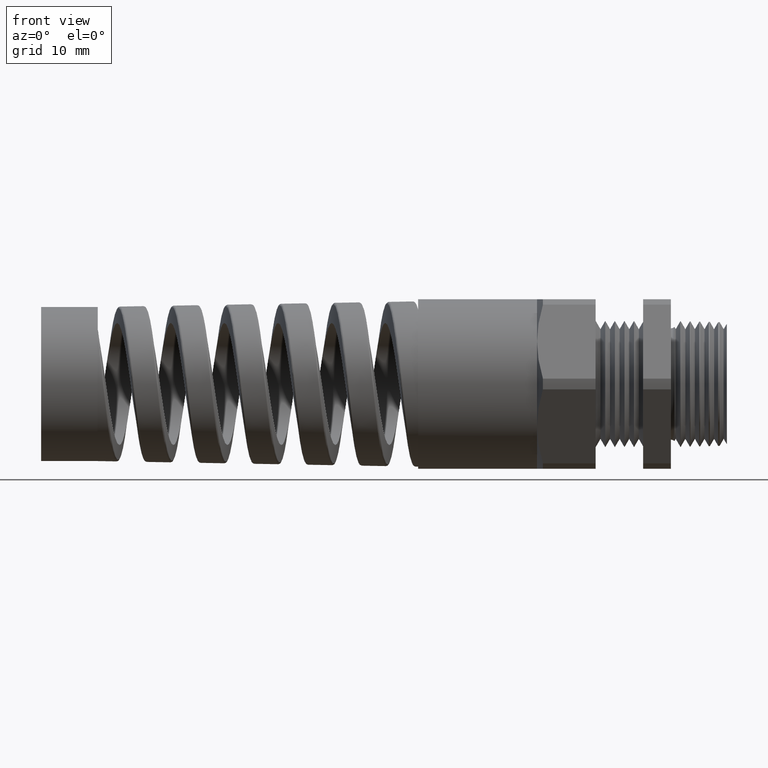
[diagram: clean part render]
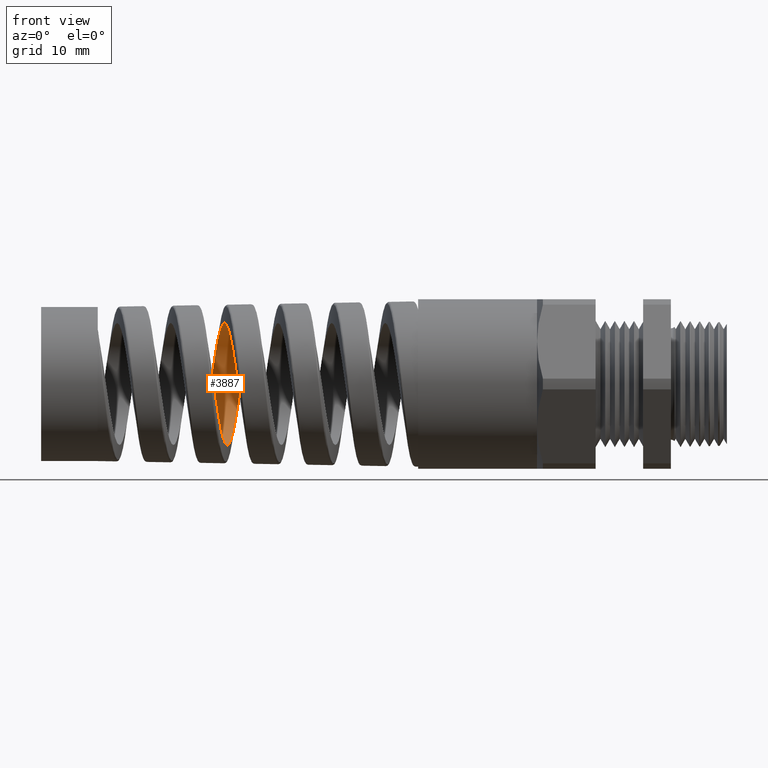
[diagram: same view with one face highlighted and labeled with its STEP entity id]
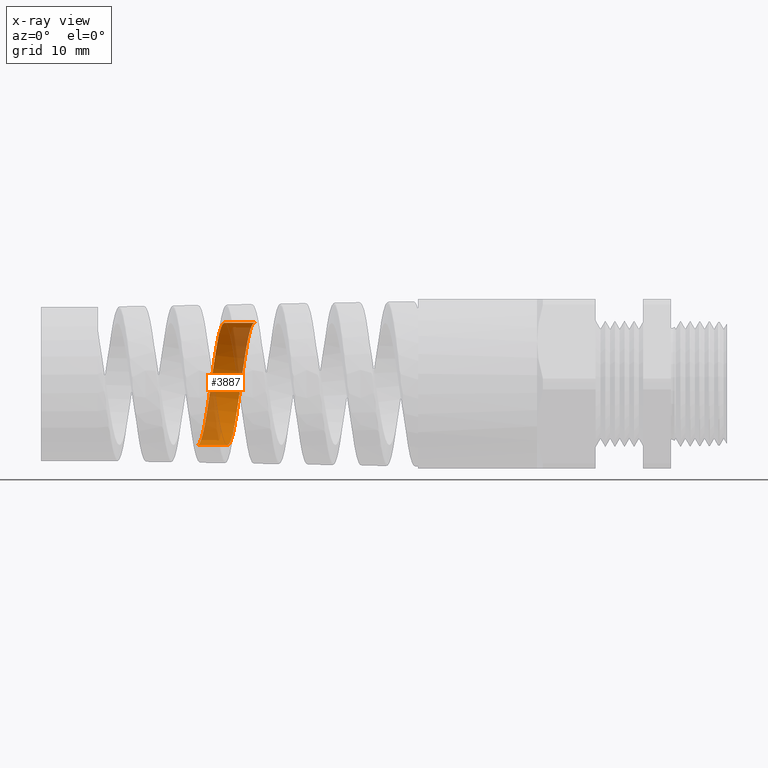
[diagram: x-ray of the same camera — body ghosted, the highlighted face saturated]
A machine part, front view. The second image highlights one B-rep face of the part: STEP entity #3887.
The next image is the same camera in x-ray: the body ghosted, the highlighted face saturated — about 36% of this face is hidden behind the body in this view.
In plain terms, the highlighted cylindrical surface (partial cylindrical patch) has radius 9.7037 mm, axis along (1, 0, 0).
Its self-contained STEP definition (entity closure, byte-faithful):
#6 = CYLINDRICAL_SURFACE ( 'NONE', #93, 0.3820352270837501000 ) ;
#90 = DIRECTION ( 'NONE',  ( 0.0000000000000000000, 0.0000000000000000000, -1.000000000000000000 ) ) ;
#91 = DIRECTION ( 'NONE',  ( 1.000000000000000000, 0.0000000000000000000, 0.0000000000000000000 ) ) ;
#92 = CARTESIAN_POINT ( 'NONE',  ( 0.4924815508901369000, 0.0000000000000000000, 0.0000000000000000000 ) ) ;
#93 = AXIS2_PLACEMENT_3D ( 'NONE', #92, #91, #90 ) ;
#2061 = CARTESIAN_POINT ( 'NONE',  ( -2.723763802577470200, 0.3106543495599472500, -0.2227168441898293700 ) ) ;
#2063 = CARTESIAN_POINT ( 'NONE',  ( -2.725542607568184600, 0.3031156534018126800, -0.2328693632370738000 ) ) ;
#2064 = CARTESIAN_POINT ( 'NONE',  ( -2.736072371524823000, 0.2520361787993751800, -0.2873759930606725700 ) ) ;
#2065 = CARTESIAN_POINT ( 'NONE',  ( -2.729064700890894400, 0.2872409447671262500, -0.2521901649964501400 ) ) ;
#2066 = CARTESIAN_POINT ( 'NONE',  ( -2.739589121226157600, 0.2327095947028808000, -0.3032382583788186800 ) ) ;
#2067 = CARTESIAN_POINT ( 'NONE',  ( -2.732570289482636900, 0.2704955185429368500, -0.2706416039934612700 ) ) ;
#2120 = VERTEX_POINT ( 'NONE', #4073 ) ;
#2177 = EDGE_CURVE ( 'NONE', #2395, #2362, #4358, .T. ) ;
#2180 = ORIENTED_EDGE ( 'NONE', *, *, #2378, .T. ) ;
#2190 = EDGE_CURVE ( 'NONE', #2120, #2365, #4399, .T. ) ;
#2204 = ORIENTED_EDGE ( 'NONE', *, *, #2177, .F. ) ;
#2362 = VERTEX_POINT ( 'NONE', #8502 ) ;
#2365 = VERTEX_POINT ( 'NONE', #8501 ) ;
#2372 = EDGE_CURVE ( 'NONE', #2365, #2395, #8593, .T. ) ;
#2378 = EDGE_CURVE ( 'NONE', #2120, #2362, #8610, .T. ) ;
#2384 = CARTESIAN_POINT ( 'NONE',  ( -2.750149870379852600, 0.1691964298744001400, -0.3434303928435552000 ) ) ;
#2385 = CARTESIAN_POINT ( 'NONE',  ( -2.746665895654331700, 0.1911841165376337300, -0.3317105509791494800 ) ) ;
#2386 = CARTESIAN_POINT ( 'NONE',  ( -2.741364161898928800, 0.2225565933471029800, -0.3107693080392966400 ) ) ;
#2387 = CARTESIAN_POINT ( 'NONE',  ( -2.757166506011995200, 0.1228904629759651900, -0.3619490467453789800 ) ) ;
#2388 = CARTESIAN_POINT ( 'NONE',  ( -2.755407839700355400, 0.1346623215534017400, -0.3577320391805547900 ) ) ;
#2390 = CARTESIAN_POINT ( 'NONE',  ( -2.760710304952708400, 0.09881234654315719500, -0.3692496425197601100 ) ) ;
#2395 = VERTEX_POINT ( 'NONE', #8675 ) ;
#2402 = CARTESIAN_POINT ( 'NONE',  ( -2.762486992639439500, 0.08656056227930336600, -0.3723094667399961000 ) ) ;
#2407 = CARTESIAN_POINT ( 'NONE',  ( -2.767765342367383600, 0.04978781850382946200, -0.3796007228590976300 ) ) ;
#2408 = CARTESIAN_POINT ( 'NONE',  ( -2.774765648001497300, 1.254942672089520900E-015, -0.3820352270837501000 ) ) ;
#2413 = CARTESIAN_POINT ( 'NONE',  ( -2.771249210882846400, 0.02501723694449162600, -0.3820352270837501000 ) ) ;
#3843 = ORIENTED_EDGE ( 'NONE', *, *, #2190, .F. ) ;
#3846 = EDGE_LOOP ( 'NONE', ( #3865, #3843, #2180, #2204 ) ) ;
#3865 = ORIENTED_EDGE ( 'NONE', *, *, #2372, .F. ) ;
#3887 = ADVANCED_FACE ( 'NONE', ( #11780 ), #6, .F. ) ;
#4073 = CARTESIAN_POINT ( 'NONE',  ( -2.960963163897965000, 3.042168851694564100E-014, -0.3820352270837502600 ) ) ;
#4325 = CARTESIAN_POINT ( 'NONE',  ( -2.718458838466124100, 0.3316065778590288100, -0.1913635379778187200 ) ) ;
#4326 = CARTESIAN_POINT ( 'NONE',  ( -2.714975020025153500, 0.3433380245141717200, -0.1693841615059762100 ) ) ;
#4327 = CARTESIAN_POINT ( 'NONE',  ( -2.709720838270481400, 0.3576597730019127100, -0.1348542588779230200 ) ) ;
#4328 = CARTESIAN_POINT ( 'NONE',  ( -2.707964767002885200, 0.3618839734423663900, -0.1230823197177700600 ) ) ;
#4329 = CARTESIAN_POINT ( 'NONE',  ( -2.704425028163496100, 0.3691991699996979800, -0.09900121480606652300 ) ) ;
#4330 = CARTESIAN_POINT ( 'NONE',  ( -2.702650968428168100, 0.3722638318887203100, -0.08675633717375826100 ) ) ;
#4331 = CARTESIAN_POINT ( 'NONE',  ( -2.697373987706143300, 0.3795734989348878400, -0.04999304948340489700 ) ) ;
#4332 = CARTESIAN_POINT ( 'NONE',  ( -2.693882431463825900, 0.3820218420338380400, -0.02522466676325450100 ) ) ;
#4333 = CARTESIAN_POINT ( 'NONE',  ( -2.688601821931583900, 0.3820418382760084600, 0.01230702065686051200 ) ) ;
#4334 = CARTESIAN_POINT ( 'NONE',  ( -2.686824079995858500, 0.3814264141840355000, 0.02495108050951256500 ) ) ;
#4335 = CARTESIAN_POINT ( 'NONE',  ( -2.683293033520759000, 0.3789639478819193900, 0.04994989551173723700 ) ) ;
#4336 = CARTESIAN_POINT ( 'NONE',  ( -2.681539718546369900, 0.3771260165410801900, 0.06230542158879511000 ) ) ;
#4337 = CARTESIAN_POINT ( 'NONE',  ( -2.676288792329044600, 0.3698386628304019000, 0.09894751600229799400 ) ) ;
#4338 = CARTESIAN_POINT ( 'NONE',  ( -2.672800231002948400, 0.3626323930077728900, 0.1228136173127040800 ) ) ;
#4339 = CARTESIAN_POINT ( 'NONE',  ( -2.667481120497615400, 0.3481837030321950400, 0.1577265172901543000 ) ) ;
#4340 = CARTESIAN_POINT ( 'NONE',  ( -2.665708617958202400, 0.3427929190114865600, 0.1691149793785632600 ) ) ;
#4341 = CARTESIAN_POINT ( 'NONE',  ( -2.662190739964432200, 0.3310169884195463000, 0.1911403017479082200 ) ) ;
#4342 = CARTESIAN_POINT ( 'NONE',  ( -2.660438923925351900, 0.3246144923512850300, 0.2018197491902531100 ) ) ;
#4343 = CARTESIAN_POINT ( 'NONE',  ( -2.656936619029480500, 0.3107920565877411700, 0.2225175888995325800 ) ) ;
#4344 = CARTESIAN_POINT ( 'NONE',  ( -2.655185839172534900, 0.3033721463206242000, 0.2325359512177973800 ) ) ;
#4345 = CARTESIAN_POINT ( 'NONE',  ( -2.651666288965714500, 0.2874982575774494600, 0.2518975578720021300 ) ) ;
#4346 = CARTESIAN_POINT ( 'NONE',  ( -2.649888115139096700, 0.2789937750715034100, 0.2612869977642324200 ) ) ;
#4347 = CARTESIAN_POINT ( 'NONE',  ( -2.644596403087951900, 0.2523687623170876600, 0.2879078854858307400 ) ) ;
#4348 = CARTESIAN_POINT ( 'NONE',  ( -2.641111832699970300, 0.2331110447989971100, 0.3036972652025065100 ) ) ;
#4349 = CARTESIAN_POINT ( 'NONE',  ( -2.634091172249419800, 0.1916534509041965000, 0.3314238115393555700 ) ) ;
#4350 = CARTESIAN_POINT ( 'NONE',  ( -2.630521328988840100, 0.1692141095157440000, 0.3434249816068187200 ) ) ;
#4351 = CARTESIAN_POINT ( 'NONE',  ( -2.623494607581814200, 0.1230833326547991900, 0.3625253454221348800 ) ) ;
#4352 = CARTESIAN_POINT ( 'NONE',  ( -2.620013630343347900, 0.09926479899762562200, 0.3697635585598835800 ) ) ;
#4353 = CARTESIAN_POINT ( 'NONE',  ( -2.614731886349653100, 0.06240993519114543300, 0.3771111685284104200 ) ) ;
#4354 = CARTESIAN_POINT ( 'NONE',  ( -2.612952627585371200, 0.04987392932407409800, 0.3789733183006987500 ) ) ;
#4355 = CARTESIAN_POINT ( 'NONE',  ( -2.609425617338531700, 0.02491289024187983200, 0.3814282799031314400 ) ) ;
#4356 = CARTESIAN_POINT ( 'NONE',  ( -2.607672038468566500, 0.01244814403770184500, 0.3820352270837501500 ) ) ;
#4357 = CARTESIAN_POINT ( 'NONE',  ( -2.605919869768849500, -3.818184422394817700E-015, 0.3820352270837501000 ) ) ;
#4358 = B_SPLINE_CURVE_WITH_KNOTS ( 'NONE', 3,
 ( #4357, #4356, #4355, #4354, #4353, #4352, #4351, #4350, #4349, #4348, #4347, #4346, #4345, #4344, #4343, #4342, #4341, #4340, #4339, #4338, #4337, #4336, #4335, #4334, #4333, #4332, #4331, #4330, #4329, #4328, #4327, #4326, #4325, #2061, #2063, #2065, #2067, #2064, #2066, #2386, #2385, #2384, #2388, #2387, #2390, #2402, #2407, #2413, #2408 ),
 .UNSPECIFIED., .F., .F.,
 ( 4, 2, 2, 2, 2, 2, 2, 2, 2, 2, 2, 2, 2, 2, 2, 2, 2, 2, 1, 2, 2, 2, 2, 2, 4 ),
 ( 0.1880161247607579100, 0.1889736613803807400, 0.1899311980000035800, 0.1918462712392492400, 0.1937613444784949100, 0.1956764177177405800, 0.1966339543373633900, 0.1975914909569862200, 0.1985490275766090600, 0.1995065641962318900, 0.2014216374354775600, 0.2023791740551003900, 0.2033367106747232300, 0.2052517839139688700, 0.2062093205335917000, 0.2071668571532145300, 0.2090819303924601700, 0.2100394670120830100, 0.2109970036317058400, 0.2119545402513286500, 0.2129120768709514800, 0.2148271501101971200, 0.2157846867298199600, 0.2167422233494427900, 0.2186572965886884300 ),
 .UNSPECIFIED. ) ;
#4363 = CARTESIAN_POINT ( 'NONE',  ( -2.828135068414021600, 0.2331547817128913900, 0.3036739274117272700 ) ) ;
#4364 = CARTESIAN_POINT ( 'NONE',  ( -2.831599613579801800, 0.2523941448100400200, 0.2878735061366190000 ) ) ;
#4365 = CARTESIAN_POINT ( 'NONE',  ( -2.838574300067439300, 0.2877058654696449400, 0.2525852229330610700 ) ) ;
#4366 = CARTESIAN_POINT ( 'NONE',  ( -2.842111791321863600, 0.3038516679083058700, 0.2329103948412927800 ) ) ;
#4367 = CARTESIAN_POINT ( 'NONE',  ( -2.849084851671309000, 0.3315568223640645900, 0.1914240362640758900 ) ) ;
#4368 = CARTESIAN_POINT ( 'NONE',  ( -2.852552639956162500, 0.3433082421779329300, 0.1694696747164171900 ) ) ;
#4369 = CARTESIAN_POINT ( 'NONE',  ( -2.857821061664659100, 0.3577206761060081600, 0.1347005340928812400 ) ) ;
#4370 = CARTESIAN_POINT ( 'NONE',  ( -2.859592684039801400, 0.3619881245544979100, 0.1227694067098395200 ) ) ;
#4371 = CARTESIAN_POINT ( 'NONE',  ( -2.863094971937836700, 0.3692508690683305500, 0.09880043134850778600 ) ) ;
#4372 = CARTESIAN_POINT ( 'NONE',  ( -2.864835434947901500, 0.3722746033987827100, 0.08670312259825695100 ) ) ;
#4373 = CARTESIAN_POINT ( 'NONE',  ( -2.870052085301251200, 0.3795553176474634200, 0.05008257044894080100 ) ) ;
#4374 = CARTESIAN_POINT ( 'NONE',  ( -2.873534394626035700, 0.3820387686402375000, 0.02514810124119973300 ) ) ;
#4375 = CARTESIAN_POINT ( 'NONE',  ( -2.880579302935335000, 0.3820316779667066200, -0.02525558888898212300 ) ) ;
#4376 = CARTESIAN_POINT ( 'NONE',  ( -2.884051377930253200, 0.3795581834282503700, -0.05006723179888206100 ) ) ;
#4377 = CARTESIAN_POINT ( 'NONE',  ( -2.889280411838938800, 0.3722739791963742300, -0.08670672430576528700 ) ) ;
#4378 = CARTESIAN_POINT ( 'NONE',  ( -2.891026600972937700, 0.3692459844078421800, -0.09882291745692213500 ) ) ;
#4379 = CARTESIAN_POINT ( 'NONE',  ( -2.894538734692935700, 0.3619603543697922900, -0.1228546616148871500 ) ) ;
#4380 = CARTESIAN_POINT ( 'NONE',  ( -2.896306392435523700, 0.3576906432948293000, -0.1347773561951168000 ) ) ;
#4381 = CARTESIAN_POINT ( 'NONE',  ( -2.901552115846427700, 0.3433094989785675000, -0.1694578764376094300 ) ) ;
#4382 = CARTESIAN_POINT ( 'NONE',  ( -2.905011371578557700, 0.3315693565814895600, -0.1914077294979854000 ) ) ;
#4383 = CARTESIAN_POINT ( 'NONE',  ( -2.910249259679957000, 0.3107542631991666600, -0.2225730514619902500 ) ) ;
#4384 = CARTESIAN_POINT ( 'NONE',  ( -2.912010848472525600, 0.3032435536671319000, -0.2327074248976739900 ) ) ;
#4385 = CARTESIAN_POINT ( 'NONE',  ( -2.915532993410760600, 0.2872657356311894600, -0.2521662062518465500 ) ) ;
#4386 = CARTESIAN_POINT ( 'NONE',  ( -2.917281799172781300, 0.2788568955789528200, -0.2614288817616590200 ) ) ;
#4387 = CARTESIAN_POINT ( 'NONE',  ( -2.922515126899397000, 0.2524103397568205300, -0.2878561965797831200 ) ) ;
#4388 = CARTESIAN_POINT ( 'NONE',  ( -2.925983469934883900, 0.2331635691241198700, -0.3036730471384224700 ) ) ;
#4389 = CARTESIAN_POINT ( 'NONE',  ( -2.931251084513503800, 0.2018192148477643800, -0.3246195202836538700 ) ) ;
#4390 = CARTESIAN_POINT ( 'NONE',  ( -2.933016305396571400, 0.1909639415498688200, -0.3311194881336069200 ) ) ;
#4391 = CARTESIAN_POINT ( 'NONE',  ( -2.936510555163749400, 0.1688978074026038500, -0.3429006751943143300 ) ) ;
#4392 = CARTESIAN_POINT ( 'NONE',  ( -2.939988031558997200, 0.1463621162742201900, -0.3535433567703808500 ) ) ;
#4393 = CARTESIAN_POINT ( 'NONE',  ( -2.943467179855911600, 0.1229057837837630300, -0.3619410257622390200 ) ) ;
#4394 = CARTESIAN_POINT ( 'NONE',  ( -2.946963886680491000, 0.09898526017996134300, -0.3692005634941913400 ) ) ;
#4395 = CARTESIAN_POINT ( 'NONE',  ( -2.948729949916174300, 0.08673007481645159100, -0.3722727586751415900 ) ) ;
#4396 = CARTESIAN_POINT ( 'NONE',  ( -2.954011580341466800, 0.04971935639526570100, -0.3796204582446968700 ) ) ;
#4397 = CARTESIAN_POINT ( 'NONE',  ( -2.957481342319859200, 0.02491754421665970700, -0.3820352270837485400 ) ) ;
#4398 = CARTESIAN_POINT ( 'NONE',  ( -2.960963163897965000, 3.042168851694564100E-014, -0.3820352270837502600 ) ) ;
#4399 = B_SPLINE_CURVE_WITH_KNOTS ( 'NONE', 3,
 ( #4398, #4397, #4396, #4395, #4394, #4393, #4392, #4391, #4390, #4389, #4388, #4387, #4386, #4385, #4384, #4383, #4382, #4381, #4380, #4379, #4378, #4377, #4376, #4375, #4374, #4373, #4372, #4371, #4370, #4369, #4368, #4367, #4366, #4365, #4364, #4363, #4435, #4434, #4433, #4432, #4431, #4430, #4429, #4428, #4427 ),
 .UNSPECIFIED., .F., .F.,
 ( 4, 2, 2, 1, 2, 2, 2, 2, 2, 2, 2, 2, 2, 2, 2, 2, 2, 2, 2, 2, 2, 2, 4 ),
 ( 0.1141298751561891800, 0.1160470989314332800, 0.1170057108190553400, 0.1179643227066773900, 0.1189229345942994500, 0.1198815464819214900, 0.1217987702571656000, 0.1227573821447876500, 0.1237159940324097100, 0.1256332178076538000, 0.1265918296952758500, 0.1275504415828979100, 0.1294676653581420000, 0.1313848891333860800, 0.1323435010210081400, 0.1333021129086301700, 0.1352193366838742900, 0.1371365604591183700, 0.1390537842343624600, 0.1400123961219845200, 0.1409710080096065700, 0.1428882317848506600, 0.1448054555600947800 ),
 .UNSPECIFIED. ) ;
#4427 = CARTESIAN_POINT ( 'NONE',  ( -2.793150844400570600, 4.138322859152348500E-015, 0.3820352270837501000 ) ) ;
#4428 = CARTESIAN_POINT ( 'NONE',  ( -2.796635743123169900, 0.02489676277363323000, 0.3820352270837493700 ) ) ;
#4429 = CARTESIAN_POINT ( 'NONE',  ( -2.800107331276235000, 0.04973040995576991100, 0.3796248063333219600 ) ) ;
#4430 = CARTESIAN_POINT ( 'NONE',  ( -2.807160531957461300, 0.09924681730111692400, 0.3697812549515995300 ) ) ;
#4431 = CARTESIAN_POINT ( 'NONE',  ( -2.810629793019517200, 0.1231264787158595100, 0.3625059995979932300 ) ) ;
#4432 = CARTESIAN_POINT ( 'NONE',  ( -2.815849945943401900, 0.1576307482870932000, 0.3482217908467636300 ) ) ;
#4433 = CARTESIAN_POINT ( 'NONE',  ( -2.817592822158266200, 0.1689136029767280300, 0.3428939781962095900 ) ) ;
#4434 = CARTESIAN_POINT ( 'NONE',  ( -2.821100948007711400, 0.1910306454916146600, 0.3310821318598442000 ) ) ;
#4435 = CARTESIAN_POINT ( 'NONE',  ( -2.822873013722423600, 0.2019024129170094400, 0.3245664081729668900 ) ) ;
#8501 = CARTESIAN_POINT ( 'NONE',  ( -2.793150844400570600, 4.138322859152348500E-015, 0.3820352270837501000 ) ) ;
#8502 = CARTESIAN_POINT ( 'NONE',  ( -2.774765648001497300, 1.254942672089520900E-015, -0.3820352270837501000 ) ) ;
#8590 = DIRECTION ( 'NONE',  ( 1.000000000000000000, 0.0000000000000000000, 0.0000000000000000000 ) ) ;
#8591 = VECTOR ( 'NONE', #8590, 39.37007874015748100 ) ;
#8592 = CARTESIAN_POINT ( 'NONE',  ( 0.4924815508901369000, 4.678582180096467500E-017, 0.3820352270837501000 ) ) ;
#8593 = LINE ( 'NONE', #8592, #8591 ) ;
#8607 = DIRECTION ( 'NONE',  ( 1.000000000000000000, 0.0000000000000000000, 0.0000000000000000000 ) ) ;
#8608 = VECTOR ( 'NONE', #8607, 39.37007874015748100 ) ;
#8609 = CARTESIAN_POINT ( 'NONE',  ( 0.4924815508901369000, 0.0000000000000000000, -0.3820352270837501000 ) ) ;
#8610 = LINE ( 'NONE', #8609, #8608 ) ;
#8675 = CARTESIAN_POINT ( 'NONE',  ( -2.605919869768849500, -3.818184422394817700E-015, 0.3820352270837501000 ) ) ;
#11780 = FACE_OUTER_BOUND ( 'NONE', #3846, .T. ) ;